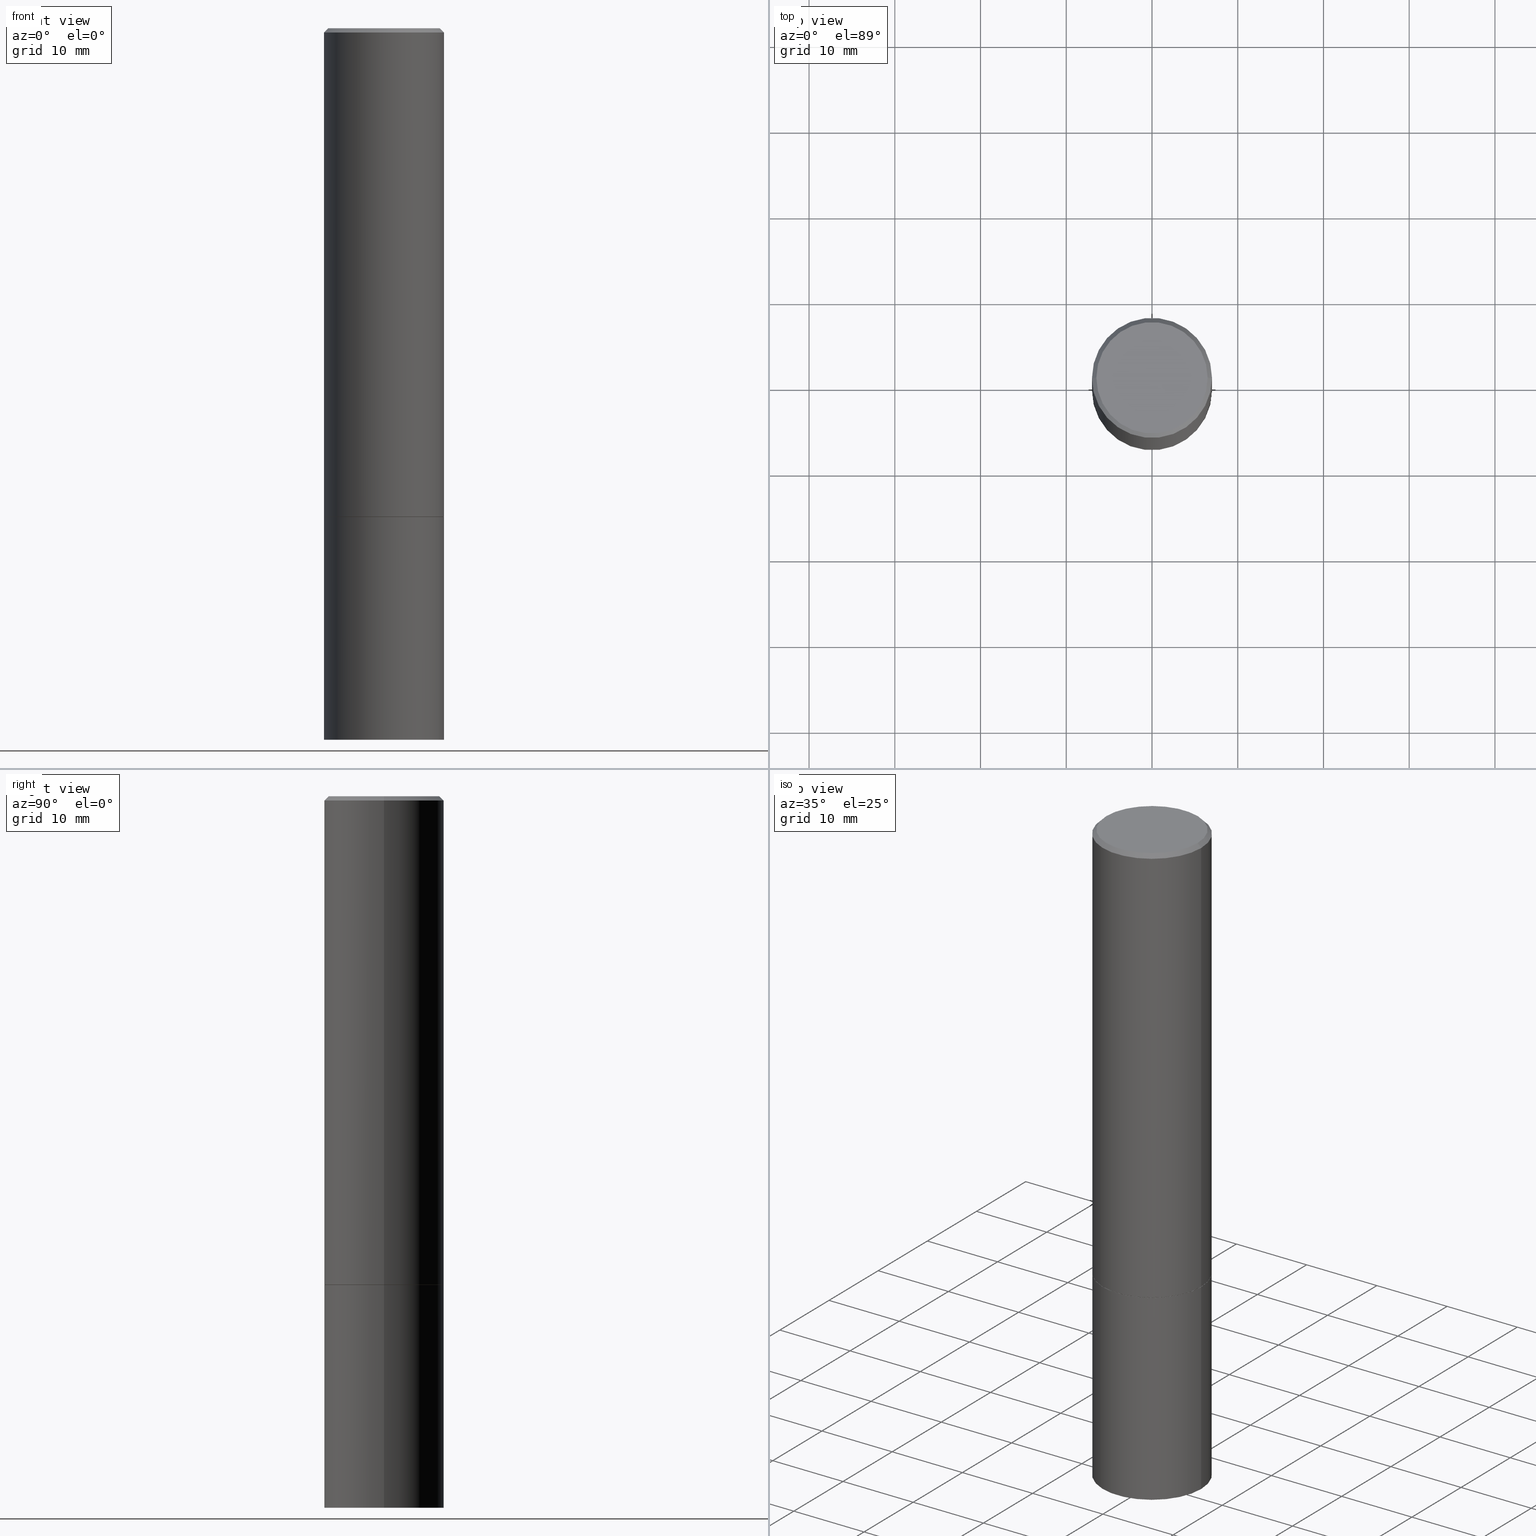
[diagram: canonical four-view strip — front | top / right | iso, engineering-drawing reading convention]
A machine part, canonical four-view strip (front | top / right | iso — engineering-drawing reading convention). The complete STEP part file that produces these views, byte-faithful:
ISO-10303-21;
HEADER;
FILE_DESCRIPTION (( 'STEP AP203' ),
    '1' );
FILE_NAME ('44534.STEP',
    '2024-02-28T06:20:43',
    ( '' ),
    ( '' ),
    'SwSTEP 2.0',
    'SolidWorks 2023',
    '' );
FILE_SCHEMA (( 'CONFIG_CONTROL_DESIGN' ));
ENDSEC;

DATA;
#1 = CARTESIAN_POINT ( 'NONE',  ( 0.2755999999999997341, -1.960582874962695433E-15, -0.02000000000000006287 ) ) ;
#2 = EDGE_LOOP ( 'NONE', ( #322, #285 ) ) ;
#3 = ADVANCED_FACE ( 'NONE', ( #169 ), #364, .F. ) ;
#4 = VERTEX_POINT ( 'NONE', #106 ) ;
#5 = CIRCLE ( 'NONE', #241, 0.2756000000000000116 ) ;
#6 = MANIFOLD_SOLID_BREP ( 'Body-Move/Copy2[1]', #206 ) ;
#7 = LOCAL_TIME ( 1, 20, 43.00000000000000000, #255 ) ;
#8 = CARTESIAN_POINT ( 'NONE',  ( 5.487876547960064752E-29, -7.835233272497902340E-15, -2.244099999999999984 ) ) ;
#9 = CARTESIAN_POINT ( 'NONE',  ( 4.890937612370288923E-31, -6.982962677686312563E-17, -0.02000000000000006287 ) ) ;
#10 = AXIS2_PLACEMENT_3D ( 'NONE', #141, #239, #262 ) ;
#11 = PERSON_AND_ORGANIZATION_ROLE ( 'classification_officer' ) ;
#12 = CC_DESIGN_PERSON_AND_ORGANIZATION_ASSIGNMENT ( #13, #11, ( #173 ) ) ;
#13 = PERSON_AND_ORGANIZATION ( #96, #254 ) ;
#14 = DIRECTION ( 'NONE',  ( 2.438088387897960049E-29, -3.491481338843145188E-15, -1.000000000000000000 ) ) ;
#15 = PRODUCT_DEFINITION ( 'UNKNOWN', '', #92, #144 ) ;
#16 = DATE_AND_TIME ( #98, #33 ) ;
#17 = CARTESIAN_POINT ( 'NONE',  ( 5.487876547960065873E-29, -7.835233272497903917E-15, -2.244100000000000428 ) ) ;
#18 = DIRECTION ( 'NONE',  ( 0.7071067811866320607, -2.468850131083142557E-15, 0.7071067811864629737 ) ) ;
#19 = VERTEX_POINT ( 'NONE', #180 ) ;
#20 = DIRECTION ( 'NONE',  ( 1.000000000000000000, -6.982962677686267499E-15, 4.876201967404967742E-29 ) ) ;
#21 = AXIS2_PLACEMENT_3D ( 'NONE', #238, #236, #44 ) ;
#22 = ADVANCED_FACE ( 'NONE', ( #240 ), #310, .T. ) ;
#23 = ORIENTED_EDGE ( 'NONE', *, *, #213, .T. ) ;
#24 = EDGE_CURVE ( 'NONE', #316, #243, #338, .T. ) ;
#25 = APPLICATION_PROTOCOL_DEFINITION ( 'international standard', 'config_control_design', 1994, #46 ) ;
#26 = CARTESIAN_POINT ( 'NONE',  ( -0.2756000000000000116, -7.663917641962989379E-15, -2.244100000000000428 ) ) ;
#27 = DATE_AND_TIME ( #233, #120 ) ;
#28 = ORIENTED_EDGE ( 'NONE', *, *, #130, .F. ) ;
#29 = CARTESIAN_POINT ( 'NONE',  ( 0.2755999999999997341, -1.960582874962695433E-15, -0.02000000000000006287 ) ) ;
#30 = AXIS2_PLACEMENT_3D ( 'NONE', #267, #150, #261 ) ;
#31 = ORIENTED_EDGE ( 'NONE', *, *, #185, .T. ) ;
#32 = PRODUCT ( '44534', '44534', '', ( #39 ) ) ;
#33 = LOCAL_TIME ( 1, 20, 43.00000000000000000, #274 ) ;
#34 = PERSON_AND_ORGANIZATION ( #96, #254 ) ;
#35 = VECTOR ( 'NONE', #18, 39.37007874015748143 ) ;
#36 = APPLICATION_PROTOCOL_DEFINITION ( 'international standard', 'config_control_design', 1994, #202 ) ;
#37 = PERSON_AND_ORGANIZATION ( #96, #254 ) ;
#38 = EDGE_LOOP ( 'NONE', ( #123, #55, #216, #188 ) ) ;
#39 = MECHANICAL_CONTEXT ( 'NONE', #202, 'mechanical' ) ;
#40 = DIRECTION ( 'NONE',  ( -2.445468806185136877E-29, 3.491481338843145188E-15, 1.000000000000000000 ) ) ;
#41 = CIRCLE ( 'NONE', #315, 0.2756000000000000116 ) ;
#42 = DIRECTION ( 'NONE',  ( 1.000000000000000000, -6.982962677686269866E-15, 0.000000000000000000 ) ) ;
#43 = DIRECTION ( 'NONE',  ( -2.445468806185136597E-29, 3.491481338843145583E-15, 1.000000000000000000 ) ) ;
#44 = DIRECTION ( 'NONE',  ( 1.000000000000000000, -6.982962677686265922E-15, 4.876176775795935793E-29 ) ) ;
#45 = EDGE_CURVE ( 'NONE', #85, #352, #268, .T. ) ;
#46 = APPLICATION_CONTEXT ( 'configuration controlled 3d designs of mechanical parts and assemblies' ) ;
#47 = DIRECTION ( 'NONE',  ( -1.000000000000000000, 6.982962677686265922E-15, -4.876176775795935793E-29 ) ) ;
#48 =( NAMED_UNIT ( * ) PLANE_ANGLE_UNIT ( ) SI_UNIT ( $, .RADIAN. ) );
#49 = DIRECTION ( 'NONE',  ( -2.445468806185136597E-29, 3.491481338843145583E-15, 1.000000000000000000 ) ) ;
#50 = CONICAL_SURFACE ( 'NONE', #281, 0.2755999999999997341, 0.7853981633974472798 ) ;
#51 =( LENGTH_UNIT ( ) NAMED_UNIT ( * ) SI_UNIT ( $, .METRE. ) );
#52 = ORIENTED_EDGE ( 'NONE', *, *, #166, .T. ) ;
#53 = DIRECTION ( 'NONE',  ( -2.445468806185136597E-29, 3.491481338843145583E-15, 1.000000000000000000 ) ) ;
#54 = CALENDAR_DATE ( 2024, 28, 2 ) ;
#55 = ORIENTED_EDGE ( 'NONE', *, *, #93, .T. ) ;
#56 = DIRECTION ( 'NONE',  ( -2.445468806185136597E-29, 3.491481338843145583E-15, 1.000000000000000000 ) ) ;
#57 = VERTEX_POINT ( 'NONE', #366 ) ;
#58 = AXIS2_PLACEMENT_3D ( 'NONE', #171, #210, #42 ) ;
#59 = DIRECTION ( 'NONE',  ( 1.000000000000000000, -6.982962677686267499E-15, 4.876176775795935793E-29 ) ) ;
#60 = PERSON_AND_ORGANIZATION ( #96, #254 ) ;
#61 = APPROVAL_STATUS ( 'not_yet_approved' ) ;
#62 = AXIS2_PLACEMENT_3D ( 'NONE', #72, #178, #147 ) ;
#63 = AXIS2_PLACEMENT_3D ( 'NONE', #329, #199, #71 ) ;
#64 = ADVANCED_FACE ( 'NONE', ( #360 ), #321, .T. ) ;
#65 = EDGE_CURVE ( 'NONE', #243, #316, #5, .T. ) ;
#66 = CARTESIAN_POINT ( 'NONE',  ( 0.2746000000000000107, -9.752754823790549702E-15, -2.244099999999999984 ) ) ;
#67 = SECURITY_CLASSIFICATION_LEVEL ( 'unclassified' ) ;
#68 = AXIS2_PLACEMENT_3D ( 'NONE', #192, #53, #187 ) ;
#69 = UNCERTAINTY_MEASURE_WITH_UNIT (LENGTH_MEASURE( 1.000000000000000082E-05 ), #313, 'distance_accuracy_value', 'NONE');
#70 = CARTESIAN_POINT ( 'NONE',  ( -0.2755999999999999006, 1.958255779754835406E-15, -1.355658510874251446E-29 ) ) ;
#71 = DIRECTION ( 'NONE',  ( 1.000000000000000000, -6.982962677686262766E-15, 0.000000000000000000 ) ) ;
#72 = CARTESIAN_POINT ( 'NONE',  ( 5.485431079153880270E-29, -7.831741791159060910E-15, -2.243100000000000094 ) ) ;
#73 = ORIENTED_EDGE ( 'NONE', *, *, #251, .F. ) ;
#74 = DIRECTION ( 'NONE',  ( -2.445468806185136597E-29, 3.491481338843145583E-15, 1.000000000000000000 ) ) ;
#75 = CIRCLE ( 'NONE', #355, 0.2755999999999997341 ) ;
#76 = APPROVAL_PERSON_ORGANIZATION ( #60, #125, #95 ) ;
#77 = CALENDAR_DATE ( 2024, 28, 2 ) ;
#78 = CC_DESIGN_PERSON_AND_ORGANIZATION_ASSIGNMENT ( #293, #341, ( #32 ) ) ;
#79 = ORIENTED_EDGE ( 'NONE', *, *, #176, .F. ) ;
#80 = EDGE_LOOP ( 'NONE', ( #204, #152 ) ) ;
#81 = DIRECTION ( 'NONE',  ( -1.000000000000000000, 6.982962677686265922E-15, -4.876176775795935793E-29 ) ) ;
#82 = FACE_OUTER_BOUND ( 'NONE', #2, .T. ) ;
#83 = ORIENTED_EDGE ( 'NONE', *, *, #193, .T. ) ;
#84 = APPROVAL_DATE_TIME ( #27, #266 ) ;
#85 = VERTEX_POINT ( 'NONE', #295 ) ;
#86 = CONICAL_SURFACE ( 'NONE', #63, 0.2746000000000000107, 0.7853981633975678500 ) ;
#87 = ADVANCED_FACE ( 'NONE', ( #344 ), #318, .T. ) ;
#88 = ORIENTED_EDGE ( 'NONE', *, *, #298, .T. ) ;
#89 = DIRECTION ( 'NONE',  ( 1.000000000000000000, -6.982962677686262766E-15, 0.000000000000000000 ) ) ;
#90 = VERTEX_POINT ( 'NONE', #280 ) ;
#91 = FACE_OUTER_BOUND ( 'NONE', #275, .T. ) ;
#92 = PRODUCT_DEFINITION_FORMATION_WITH_SPECIFIED_SOURCE ( 'ANY', '', #32, .NOT_KNOWN. ) ;
#93 = EDGE_CURVE ( 'NONE', #19, #334, #256, .T. ) ;
#94 = CC_DESIGN_DATE_AND_TIME_ASSIGNMENT ( #326, #303, ( #173 ) ) ;
#95 = APPROVAL_ROLE ( '' ) ;
#96 = PERSON ( 'UNSPECIFIED', 'UNSPECIFIED', 'UNSPECIFIED', ('UNSPECIFIED'), ('UNSPECIFIED'), ('UNSPECIFIED') ) ;
#97 = PERSON_AND_ORGANIZATION_ROLE ( 'creator' ) ;
#98 = CALENDAR_DATE ( 2024, 28, 2 ) ;
#99 = APPROVAL ( #132, 'UNSPECIFIED' ) ;
#100 = PERSON_AND_ORGANIZATION ( #96, #254 ) ;
#101 = VECTOR ( 'NONE', #283, 39.37007874015748143 ) ;
#102 = CARTESIAN_POINT ( 'NONE',  ( -1.043851414335219820E-46, 1.490343170380447200E-32, 4.268512490100411279E-18 ) ) ;
#103 = PLANE ( 'NONE',  #10 ) ;
#104 = DIRECTION ( 'NONE',  ( 2.438088387897960049E-29, -3.491481338843145188E-15, -1.000000000000000000 ) ) ;
#105 = ORIENTED_EDGE ( 'NONE', *, *, #164, .F. ) ;
#106 = CARTESIAN_POINT ( 'NONE',  ( 0.2756000000000000116, -9.759737786468238871E-15, -2.244100000000000428 ) ) ;
#107 = AXIS2_PLACEMENT_3D ( 'NONE', #203, #74, #333 ) ;
#108 = CARTESIAN_POINT ( 'NONE',  ( 1.784845260416607569E-15, 0.2555999999999997163, -8.902883739632567265E-16 ) ) ;
#109 = DIMENSIONAL_EXPONENTS ( 1.000000000000000000, 0.000000000000000000, 0.000000000000000000, 0.000000000000000000, 0.000000000000000000, 0.000000000000000000, 0.000000000000000000 ) ;
#110 = DIRECTION ( 'NONE',  ( -2.445468806185136597E-29, 3.491481338843145583E-15, 1.000000000000000000 ) ) ;
#111 = DIRECTION ( 'NONE',  ( -0.7071067811865467956, 2.468850131082249172E-15, -0.7071067811865482389 ) ) ;
#112 = CARTESIAN_POINT ( 'NONE',  ( 0.000000000000000000, 0.000000000000000000, 0.000000000000000000 ) ) ;
#113 = APPROVAL_DATE_TIME ( #209, #99 ) ;
#114 = CARTESIAN_POINT ( 'NONE',  ( 0.2756000000000000116, -9.756246305129397442E-15, -2.243100000000000094 ) ) ;
#115 = ORIENTED_EDGE ( 'NONE', *, *, #356, .T. ) ;
#116 = CARTESIAN_POINT ( 'NONE',  ( 0.000000000000000000, 0.000000000000000000, 0.000000000000000000 ) ) ;
#117 = EDGE_LOOP ( 'NONE', ( #263, #139, #28, #218 ) ) ;
#118 = CARTESIAN_POINT ( 'NONE',  ( -1.043851414335219820E-46, 1.490343170380447200E-32, 4.268512490100411279E-18 ) ) ;
#119 = CONICAL_SURFACE ( 'NONE', #215, 0.2746000000000000107, 0.7853981633975678500 ) ;
#120 = LOCAL_TIME ( 1, 20, 43.00000000000000000, #296 ) ;
#121 = ADVANCED_FACE ( 'NONE', ( #158 ), #148, .T. ) ;
#122 = CARTESIAN_POINT ( 'NONE',  ( 4.890937612370288923E-31, -6.982962677686312563E-17, -0.02000000000000006287 ) ) ;
#123 = ORIENTED_EDGE ( 'NONE', *, *, #356, .F. ) ;
#124 = DIRECTION ( 'NONE',  ( -2.445468806185136597E-29, 3.491481338843145583E-15, 1.000000000000000000 ) ) ;
#125 = APPROVAL ( #61, 'UNSPECIFIED' ) ;
#126 = ORIENTED_EDGE ( 'NONE', *, *, #142, .F. ) ;
#127 = DIRECTION ( 'NONE',  ( 1.000000000000000000, -6.982962677686267499E-15, 4.876201967404967742E-29 ) ) ;
#128 = VECTOR ( 'NONE', #183, 39.37007874015748143 ) ;
#129 = APPROVAL_PERSON_ORGANIZATION ( #34, #99, #229 ) ;
#130 = EDGE_CURVE ( 'NONE', #211, #348, #75, .T. ) ;
#131 = CALENDAR_DATE ( 2024, 28, 2 ) ;
#132 = APPROVAL_STATUS ( 'not_yet_approved' ) ;
#133 = CIRCLE ( 'NONE', #235, 0.2555999999999997163 ) ;
#134 = AXIS2_PLACEMENT_3D ( 'NONE', #288, #49, #157 ) ;
#135 = APPROVAL_DATE_TIME ( #189, #125 ) ;
#136 = CARTESIAN_POINT ( 'NONE',  ( 0.2756000000000000116, -1.333361808490808139E-14, -3.267700000000000049 ) ) ;
#137 =( NAMED_UNIT ( * ) SI_UNIT ( $, .STERADIAN. ) SOLID_ANGLE_UNIT ( ) );
#138 = MANIFOLD_SOLID_BREP ( 'Body-Move/Copy2[2]', #260 ) ;
#139 = ORIENTED_EDGE ( 'NONE', *, *, #176, .T. ) ;
#140 = AXIS2_PLACEMENT_3D ( 'NONE', #116, #217, #59 ) ;
#141 = CARTESIAN_POINT ( 'NONE',  ( 1.924504513970389780E-15, 0.2755999999999921846, -2.244100000000001316 ) ) ;
#142 = EDGE_CURVE ( 'NONE', #334, #316, #234, .T. ) ;
#143 = EDGE_LOOP ( 'NONE', ( #219, #31 ) ) ;
#144 = DESIGN_CONTEXT ( 'detailed design', #46, 'design' ) ;
#145 = ADVANCED_FACE ( 'NONE', ( #337 ), #103, .F. ) ;
#146 = LINE ( 'NONE', #70, #308 ) ;
#147 = DIRECTION ( 'NONE',  ( 1.000000000000000000, -6.982962677686269866E-15, 0.000000000000000000 ) ) ;
#148 = CONICAL_SURFACE ( 'NONE', #282, 0.2755999999999997341, 0.7853981633974472798 ) ;
#149 = CARTESIAN_POINT ( 'NONE',  ( -0.2755999999999997341, 1.854674887193470472E-15, -0.02000000000000006287 ) ) ;
#150 = DIRECTION ( 'NONE',  ( -2.445468806185136597E-29, 3.491481338843145583E-15, 1.000000000000000000 ) ) ;
#151 = FACE_OUTER_BOUND ( 'NONE', #156, .T. ) ;
#152 = ORIENTED_EDGE ( 'NONE', *, *, #324, .T. ) ;
#153 = LINE ( 'NONE', #149, #277 ) ;
#154 = SHAPE_DEFINITION_REPRESENTATION ( #165, #232 ) ;
#155 = PERSON_AND_ORGANIZATION_ROLE ( 'creator' ) ;
#156 = EDGE_LOOP ( 'NONE', ( #186, #299 ) ) ;
#157 = DIRECTION ( 'NONE',  ( 1.000000000000000000, -6.982962677686265922E-15, 0.000000000000000000 ) ) ;
#158 = FACE_OUTER_BOUND ( 'NONE', #190, .T. ) ;
#159 = EDGE_LOOP ( 'NONE', ( #242, #212, #52, #175 ) ) ;
#160 = CIRCLE ( 'NONE', #58, 0.2756000000000000116 ) ;
#161 = DIRECTION ( 'NONE',  ( 2.445468806185136597E-29, -3.491481338843145583E-15, -1.000000000000000000 ) ) ;
#162 = ORIENTED_EDGE ( 'NONE', *, *, #221, .F. ) ;
#163 = ADVANCED_FACE ( 'NONE', ( #208 ), #119, .T. ) ;
#164 = EDGE_CURVE ( 'NONE', #348, #211, #292, .T. ) ;
#165 = PRODUCT_DEFINITION_SHAPE ( 'NONE', 'NONE',  #15 ) ;
#166 = EDGE_CURVE ( 'NONE', #352, #4, #177, .T. ) ;
#167 = CIRCLE ( 'NONE', #134, 0.2756000000000000116 ) ;
#168 = PERSON_AND_ORGANIZATION ( #96, #254 ) ;
#169 = FACE_OUTER_BOUND ( 'NONE', #80, .T. ) ;
#170 = EDGE_LOOP ( 'NONE', ( #319, #115, #250, #126 ) ) ;
#171 = CARTESIAN_POINT ( 'NONE',  ( 5.487876547960065873E-29, -7.835233272497903917E-15, -2.244100000000000428 ) ) ;
#172 = AXIS2_PLACEMENT_3D ( 'NONE', #320, #343, #349 ) ;
#173 = SECURITY_CLASSIFICATION ( '', '', #67 ) ;
#174 = DIRECTION ( 'NONE',  ( -2.445468806185136877E-29, 3.491481338843145188E-15, 1.000000000000000000 ) ) ;
#175 = ORIENTED_EDGE ( 'NONE', *, *, #185, .F. ) ;
#176 = EDGE_CURVE ( 'NONE', #243, #348, #146, .T. ) ;
#177 = LINE ( 'NONE', #363, #196 ) ;
#178 = DIRECTION ( 'NONE',  ( -2.445468806185136597E-29, 3.491481338843145583E-15, 1.000000000000000000 ) ) ;
#179 = DIRECTION ( 'NONE',  ( -1.000000000000000000, 6.982962677686267499E-15, 0.000000000000000000 ) ) ;
#180 = CARTESIAN_POINT ( 'NONE',  ( -0.2746000000000000107, -5.878784465752445145E-15, -2.244099999999999984 ) ) ;
#181 = CARTESIAN_POINT ( 'NONE',  ( 0.000000000000000000, 0.000000000000000000, 0.000000000000000000 ) ) ;
#182 = CIRCLE ( 'NONE', #358, 0.2746000000000000107 ) ;
#183 = DIRECTION ( 'NONE',  ( -2.445468806185136877E-29, 3.491481338843145188E-15, 1.000000000000000000 ) ) ;
#184 = DIRECTION ( 'NONE',  ( 0.000000000000000000, 0.000000000000000000, 1.000000000000000000 ) ) ;
#185 = EDGE_CURVE ( 'NONE', #306, #4, #160, .T. ) ;
#186 = ORIENTED_EDGE ( 'NONE', *, *, #230, .F. ) ;
#187 = DIRECTION ( 'NONE',  ( 1.000000000000000000, -6.982962677686262766E-15, 0.000000000000000000 ) ) ;
#188 = ORIENTED_EDGE ( 'NONE', *, *, #65, .F. ) ;
#189 = DATE_AND_TIME ( #54, #304 ) ;
#190 = EDGE_LOOP ( 'NONE', ( #342, #162, #314, #272 ) ) ;
#191 = CARTESIAN_POINT ( 'NONE',  ( -0.2756000000000000116, -1.992529929213123148E-15, -2.243100000000000094 ) ) ;
#192 = CARTESIAN_POINT ( 'NONE',  ( 5.487876547960064752E-29, -7.835233272497902340E-15, -2.244099999999999984 ) ) ;
#193 = EDGE_CURVE ( 'NONE', #85, #306, #258, .T. ) ;
#194 = CC_DESIGN_DATE_AND_TIME_ASSIGNMENT ( #16, #351, ( #15 ) ) ;
#195 = DIRECTION ( 'NONE',  ( 1.000000000000000000, -6.982962677686265922E-15, 4.876176775795935793E-29 ) ) ;
#196 = VECTOR ( 'NONE', #40, 39.37007874015748143 ) ;
#197 = COORDINATED_UNIVERSAL_TIME_OFFSET ( 5, 0, .BEHIND. ) ;
#198 =( GEOMETRIC_REPRESENTATION_CONTEXT ( 3 ) GLOBAL_UNCERTAINTY_ASSIGNED_CONTEXT ( ( #69 ) ) GLOBAL_UNIT_ASSIGNED_CONTEXT ( ( #313, #48, #137 ) ) REPRESENTATION_CONTEXT ( 'NONE', 'WORKASPACE' ) );
#199 = DIRECTION ( 'NONE',  ( -2.445468806185136597E-29, 3.491481338843145583E-15, 1.000000000000000000 ) ) ;
#200 = DIRECTION ( 'NONE',  ( -2.445468806185136877E-29, 3.491481338843145188E-15, 1.000000000000000000 ) ) ;
#201 = EDGE_CURVE ( 'NONE', #352, #85, #167, .T. ) ;
#202 = APPLICATION_CONTEXT ( 'configuration controlled 3d designs of mechanical parts and assemblies' ) ;
#203 = CARTESIAN_POINT ( 'NONE',  ( 4.890937612370288923E-31, -6.982962677686312563E-17, -0.02000000000000006287 ) ) ;
#204 = ORIENTED_EDGE ( 'NONE', *, *, #221, .T. ) ;
#205 = CARTESIAN_POINT ( 'NONE',  ( -0.2756000000000000116, 1.958255779754836195E-15, -1.355658510874252007E-29 ) ) ;
#206 = CLOSED_SHELL ( 'NONE', ( #64, #311, #145, #87 ) ) ;
#207 = CC_DESIGN_APPROVAL ( #125, ( #92 ) ) ;
#208 = FACE_OUTER_BOUND ( 'NONE', #170, .T. ) ;
#209 = DATE_AND_TIME ( #77, #7 ) ;
#210 = DIRECTION ( 'NONE',  ( -2.445468806185136597E-29, 3.491481338843145583E-15, 1.000000000000000000 ) ) ;
#211 = VERTEX_POINT ( 'NONE', #29 ) ;
#212 = ORIENTED_EDGE ( 'NONE', *, *, #45, .T. ) ;
#213 = EDGE_CURVE ( 'NONE', #316, #211, #276, .T. ) ;
#214 = FACE_OUTER_BOUND ( 'NONE', #38, .T. ) ;
#215 = AXIS2_PLACEMENT_3D ( 'NONE', #309, #43, #265 ) ;
#216 = ORIENTED_EDGE ( 'NONE', *, *, #142, .T. ) ;
#217 = DIRECTION ( 'NONE',  ( -2.445468806185136597E-29, 3.491481338843145583E-15, 1.000000000000000000 ) ) ;
#218 = ORIENTED_EDGE ( 'NONE', *, *, #213, .F. ) ;
#219 = ORIENTED_EDGE ( 'NONE', *, *, #251, .T. ) ;
#220 = DIRECTION ( 'NONE',  ( -2.445468806185136597E-29, 3.491481338843145583E-15, 1.000000000000000000 ) ) ;
#221 = EDGE_CURVE ( 'NONE', #90, #57, #228, .T. ) ;
#222 = ADVANCED_FACE ( 'NONE', ( #294 ), #278, .T. ) ;
#223 = AXIS2_PLACEMENT_3D ( 'NONE', #108, #104, #47 ) ;
#224 = CC_DESIGN_APPROVAL ( #99, ( #173 ) ) ;
#225 = DIRECTION ( 'NONE',  ( 1.000000000000000000, -6.982962677686267499E-15, 4.876176775795935793E-29 ) ) ;
#226 = COORDINATED_UNIVERSAL_TIME_OFFSET ( 5, 0, .BEHIND. ) ;
#227 = CARTESIAN_POINT ( 'NONE',  ( 1.924504513970415023E-15, 0.2755999999999886318, -3.267700000000001381 ) ) ;
#228 = CIRCLE ( 'NONE', #365, 0.2555999999999997163 ) ;
#229 = APPROVAL_ROLE ( '' ) ;
#230 = EDGE_CURVE ( 'NONE', #334, #19, #182, .T. ) ;
#231 = DIRECTION ( 'NONE',  ( -2.438088387897960049E-29, 3.491481338843145188E-15, 1.000000000000000000 ) ) ;
#232 = ADVANCED_BREP_SHAPE_REPRESENTATION ( '44534', ( #6, #138, #248 ), #198 ) ;
#233 = CALENDAR_DATE ( 2024, 28, 2 ) ;
#234 = LINE ( 'NONE', #307, #35 ) ;
#235 = AXIS2_PLACEMENT_3D ( 'NONE', #102, #110, #20 ) ;
#236 = DIRECTION ( 'NONE',  ( -2.445468806185136597E-29, 3.491481338843145583E-15, 1.000000000000000000 ) ) ;
#237 = LINE ( 'NONE', #331, #101 ) ;
#238 = CARTESIAN_POINT ( 'NONE',  ( 0.000000000000000000, 0.000000000000000000, 0.000000000000000000 ) ) ;
#239 = DIRECTION ( 'NONE',  ( 2.438088387897960049E-29, -3.491481338843145188E-15, -1.000000000000000000 ) ) ;
#240 = FACE_OUTER_BOUND ( 'NONE', #117, .T. ) ;
#241 = AXIS2_PLACEMENT_3D ( 'NONE', #350, #56, #325 ) ;
#242 = ORIENTED_EDGE ( 'NONE', *, *, #193, .F. ) ;
#243 = VERTEX_POINT ( 'NONE', #191 ) ;
#244 = PLANE ( 'NONE',  #362 ) ;
#245 = DIRECTION ( 'NONE',  ( 2.445468806185136597E-29, -3.491481338843145583E-15, -1.000000000000000000 ) ) ;
#246 = APPROVAL_STATUS ( 'not_yet_approved' ) ;
#247 = ORIENTED_EDGE ( 'NONE', *, *, #166, .F. ) ;
#248 = AXIS2_PLACEMENT_3D ( 'NONE', #181, #184, #286 ) ;
#249 = DIRECTION ( 'NONE',  ( -2.445468806185136597E-29, 3.491481338843145583E-15, 1.000000000000000000 ) ) ;
#250 = ORIENTED_EDGE ( 'NONE', *, *, #24, .F. ) ;
#251 = EDGE_CURVE ( 'NONE', #4, #306, #41, .T. ) ;
#252 = ORIENTED_EDGE ( 'NONE', *, *, #324, .F. ) ;
#253 = CARTESIAN_POINT ( 'NONE',  ( 0.2755999999999999006, -1.924504513970334165E-15, 1.343874319409359427E-29 ) ) ;
#254 = ORGANIZATION ( 'UNSPECIFIED', 'UNSPECIFIED', '' ) ;
#255 = COORDINATED_UNIVERSAL_TIME_OFFSET ( 5, 0, .BEHIND. ) ;
#256 = CIRCLE ( 'NONE', #68, 0.2746000000000000107 ) ;
#257 = CARTESIAN_POINT ( 'NONE',  ( -0.2755999999999997341, 1.854674887193470472E-15, -0.02000000000000006287 ) ) ;
#258 = LINE ( 'NONE', #205, #323 ) ;
#259 = DIRECTION ( 'NONE',  ( -2.445468806185136597E-29, 3.491481338843145583E-15, 1.000000000000000000 ) ) ;
#260 = CLOSED_SHELL ( 'NONE', ( #163, #22, #290, #121, #222, #361, #336, #3 ) ) ;
#261 = DIRECTION ( 'NONE',  ( 1.000000000000000000, -6.982962677686265922E-15, 0.000000000000000000 ) ) ;
#262 = DIRECTION ( 'NONE',  ( -1.000000000000000000, 6.982962677686265922E-15, -4.876176775795935793E-29 ) ) ;
#263 = ORIENTED_EDGE ( 'NONE', *, *, #24, .T. ) ;
#264 = CC_DESIGN_PERSON_AND_ORGANIZATION_ASSIGNMENT ( #168, #155, ( #15 ) ) ;
#265 = DIRECTION ( 'NONE',  ( 1.000000000000000000, -6.982962677686262766E-15, 0.000000000000000000 ) ) ;
#266 = APPROVAL ( #246, 'UNSPECIFIED' ) ;
#267 = CARTESIAN_POINT ( 'NONE',  ( 7.991058417971171713E-29, -1.140911357093774644E-14, -3.267700000000000049 ) ) ;
#268 = CIRCLE ( 'NONE', #30, 0.2756000000000000116 ) ;
#269 = LOCAL_TIME ( 1, 20, 43.00000000000000000, #197 ) ;
#270 = CC_DESIGN_PERSON_AND_ORGANIZATION_ASSIGNMENT ( #37, #359, ( #92 ) ) ;
#271 = DIRECTION ( 'NONE',  ( 0.7071067811865467956, -7.319954787623254468E-15, -0.7071067811865482389 ) ) ;
#272 = ORIENTED_EDGE ( 'NONE', *, *, #164, .T. ) ;
#273 = PLANE ( 'NONE',  #339 ) ;
#274 = COORDINATED_UNIVERSAL_TIME_OFFSET ( 5, 0, .BEHIND. ) ;
#275 = EDGE_LOOP ( 'NONE', ( #252, #88, #346, #289 ) ) ;
#276 = LINE ( 'NONE', #253, #128 ) ;
#277 = VECTOR ( 'NONE', #111, 39.37007874015748143 ) ;
#278 = CYLINDRICAL_SURFACE ( 'NONE', #172, 0.2755999999999999006 ) ;
#279 = DIRECTION ( 'NONE',  ( -1.000000000000000000, 6.982962677686267499E-15, 0.000000000000000000 ) ) ;
#280 = CARTESIAN_POINT ( 'NONE',  ( -0.2555999999999997163, 1.819760073805039218E-15, 4.268512490087807223E-18 ) ) ;
#281 = AXIS2_PLACEMENT_3D ( 'NONE', #312, #245, #179 ) ;
#282 = AXIS2_PLACEMENT_3D ( 'NONE', #122, #161, #279 ) ;
#283 = DIRECTION ( 'NONE',  ( -0.7071067811866320607, 7.493145998870660238E-15, 0.7071067811864629737 ) ) ;
#284 = EDGE_CURVE ( 'NONE', #90, #348, #153, .T. ) ;
#285 = ORIENTED_EDGE ( 'NONE', *, *, #45, .F. ) ;
#286 = DIRECTION ( 'NONE',  ( 1.000000000000000000, 0.000000000000000000, 0.000000000000000000 ) ) ;
#287 = APPROVAL_PERSON_ORGANIZATION ( #100, #266, #345 ) ;
#288 = CARTESIAN_POINT ( 'NONE',  ( 7.991058417971171713E-29, -1.140911357093774644E-14, -3.267700000000000049 ) ) ;
#289 = ORIENTED_EDGE ( 'NONE', *, *, #284, .F. ) ;
#290 = ADVANCED_FACE ( 'NONE', ( #91 ), #50, .T. ) ;
#291 = LINE ( 'NONE', #1, #300 ) ;
#292 = CIRCLE ( 'NONE', #107, 0.2755999999999997341 ) ;
#293 = PERSON_AND_ORGANIZATION ( #96, #254 ) ;
#294 = FACE_OUTER_BOUND ( 'NONE', #297, .T. ) ;
#295 = CARTESIAN_POINT ( 'NONE',  ( -0.2756000000000000116, -7.663917641962989379E-15, -3.267700000000000049 ) ) ;
#296 = COORDINATED_UNIVERSAL_TIME_OFFSET ( 5, 0, .BEHIND. ) ;
#297 = EDGE_LOOP ( 'NONE', ( #79, #340, #23, #105 ) ) ;
#298 = EDGE_CURVE ( 'NONE', #57, #211, #291, .T. ) ;
#299 = ORIENTED_EDGE ( 'NONE', *, *, #93, .F. ) ;
#300 = VECTOR ( 'NONE', #271, 39.37007874015748143 ) ;
#301 = ORIENTED_EDGE ( 'NONE', *, *, #201, .T. ) ;
#302 = DIRECTION ( 'NONE',  ( -2.445468806185136597E-29, 3.491481338843145583E-15, 1.000000000000000000 ) ) ;
#303 = DATE_TIME_ROLE ( 'classification_date' ) ;
#304 = LOCAL_TIME ( 1, 20, 43.00000000000000000, #226 ) ;
#305 = LENGTH_MEASURE_WITH_UNIT ( LENGTH_MEASURE( 0.02539999999999999897 ), #51 );
#306 = VERTEX_POINT ( 'NONE', #26 ) ;
#307 = CARTESIAN_POINT ( 'NONE',  ( 0.2746000000000000107, -9.752754823790549702E-15, -2.244099999999999984 ) ) ;
#308 = VECTOR ( 'NONE', #200, 39.37007874015748143 ) ;
#309 = CARTESIAN_POINT ( 'NONE',  ( 5.487876547960064752E-29, -7.835233272497902340E-15, -2.244099999999999984 ) ) ;
#310 = CYLINDRICAL_SURFACE ( 'NONE', #21, 0.2755999999999999006 ) ;
#311 = ADVANCED_FACE ( 'NONE', ( #82 ), #273, .T. ) ;
#312 = CARTESIAN_POINT ( 'NONE',  ( 4.890937612370288923E-31, -6.982962677686312563E-17, -0.02000000000000006287 ) ) ;
#313 =( CONVERSION_BASED_UNIT ( 'INCH', #305 ) LENGTH_UNIT ( ) NAMED_UNIT ( #109 ) );
#314 = ORIENTED_EDGE ( 'NONE', *, *, #284, .T. ) ;
#315 = AXIS2_PLACEMENT_3D ( 'NONE', #354, #302, #317 ) ;
#316 = VERTEX_POINT ( 'NONE', #114 ) ;
#317 = DIRECTION ( 'NONE',  ( 1.000000000000000000, -6.982962677686269866E-15, 0.000000000000000000 ) ) ;
#318 = CYLINDRICAL_SURFACE ( 'NONE', #140, 0.2756000000000000116 ) ;
#319 = ORIENTED_EDGE ( 'NONE', *, *, #230, .T. ) ;
#320 = CARTESIAN_POINT ( 'NONE',  ( 0.000000000000000000, 0.000000000000000000, 0.000000000000000000 ) ) ;
#321 = CYLINDRICAL_SURFACE ( 'NONE', #327, 0.2756000000000000116 ) ;
#322 = ORIENTED_EDGE ( 'NONE', *, *, #201, .F. ) ;
#323 = VECTOR ( 'NONE', #174, 39.37007874015748143 ) ;
#324 = EDGE_CURVE ( 'NONE', #57, #90, #133, .T. ) ;
#325 = DIRECTION ( 'NONE',  ( 1.000000000000000000, -6.982962677686269866E-15, 0.000000000000000000 ) ) ;
#326 = DATE_AND_TIME ( #131, #269 ) ;
#327 = AXIS2_PLACEMENT_3D ( 'NONE', #112, #220, #225 ) ;
#328 = PRODUCT_RELATED_PRODUCT_CATEGORY ( 'detail', '', ( #32 ) ) ;
#329 = CARTESIAN_POINT ( 'NONE',  ( 5.487876547960064752E-29, -7.835233272497902340E-15, -2.244099999999999984 ) ) ;
#330 = PERSON_AND_ORGANIZATION ( #96, #254 ) ;
#331 = CARTESIAN_POINT ( 'NONE',  ( -0.2746000000000000107, -5.884082920100667547E-15, -2.244099999999999984 ) ) ;
#332 = CC_DESIGN_APPROVAL ( #266, ( #15 ) ) ;
#333 = DIRECTION ( 'NONE',  ( 1.000000000000000000, -6.982962677686267499E-15, 0.000000000000000000 ) ) ;
#334 = VERTEX_POINT ( 'NONE', #66 ) ;
#335 = DIRECTION ( 'NONE',  ( 1.000000000000000000, -6.982962677686267499E-15, 0.000000000000000000 ) ) ;
#336 = ADVANCED_FACE ( 'NONE', ( #151 ), #244, .F. ) ;
#337 = FACE_OUTER_BOUND ( 'NONE', #143, .T. ) ;
#338 = CIRCLE ( 'NONE', #62, 0.2756000000000000116 ) ;
#339 = AXIS2_PLACEMENT_3D ( 'NONE', #227, #14, #81 ) ;
#340 = ORIENTED_EDGE ( 'NONE', *, *, #65, .T. ) ;
#341 = PERSON_AND_ORGANIZATION_ROLE ( 'design_owner' ) ;
#342 = ORIENTED_EDGE ( 'NONE', *, *, #298, .F. ) ;
#343 = DIRECTION ( 'NONE',  ( -2.445468806185136597E-29, 3.491481338843145583E-15, 1.000000000000000000 ) ) ;
#344 = FACE_OUTER_BOUND ( 'NONE', #159, .T. ) ;
#345 = APPROVAL_ROLE ( '' ) ;
#346 = ORIENTED_EDGE ( 'NONE', *, *, #130, .T. ) ;
#347 = CC_DESIGN_SECURITY_CLASSIFICATION ( #173, ( #92 ) ) ;
#348 = VERTEX_POINT ( 'NONE', #257 ) ;
#349 = DIRECTION ( 'NONE',  ( 1.000000000000000000, -6.982962677686265922E-15, 4.876176775795935793E-29 ) ) ;
#350 = CARTESIAN_POINT ( 'NONE',  ( 5.485431079153880270E-29, -7.831741791159060910E-15, -2.243100000000000094 ) ) ;
#351 = DATE_TIME_ROLE ( 'creation_date' ) ;
#352 = VERTEX_POINT ( 'NONE', #136 ) ;
#353 = EDGE_LOOP ( 'NONE', ( #301, #83, #73, #247 ) ) ;
#354 = CARTESIAN_POINT ( 'NONE',  ( 5.487876547960065873E-29, -7.835233272497903917E-15, -2.244100000000000428 ) ) ;
#355 = AXIS2_PLACEMENT_3D ( 'NONE', #9, #259, #335 ) ;
#356 = EDGE_CURVE ( 'NONE', #19, #243, #237, .T. ) ;
#357 = CC_DESIGN_PERSON_AND_ORGANIZATION_ASSIGNMENT ( #330, #97, ( #92 ) ) ;
#358 = AXIS2_PLACEMENT_3D ( 'NONE', #8, #124, #89 ) ;
#359 = PERSON_AND_ORGANIZATION_ROLE ( 'design_supplier' ) ;
#360 = FACE_OUTER_BOUND ( 'NONE', #353, .T. ) ;
#361 = ADVANCED_FACE ( 'NONE', ( #214 ), #86, .T. ) ;
#362 = AXIS2_PLACEMENT_3D ( 'NONE', #17, #231, #195 ) ;
#363 = CARTESIAN_POINT ( 'NONE',  ( 0.2756000000000000116, -1.924504513970335348E-15, 1.343874319409359987E-29 ) ) ;
#364 = PLANE ( 'NONE',  #223 ) ;
#365 = AXIS2_PLACEMENT_3D ( 'NONE', #118, #249, #127 ) ;
#366 = CARTESIAN_POINT ( 'NONE',  ( 0.2555999999999997163, -1.857063081596548453E-15, 4.268512490113146298E-18 ) ) ;
ENDSEC;
END-ISO-10303-21;
